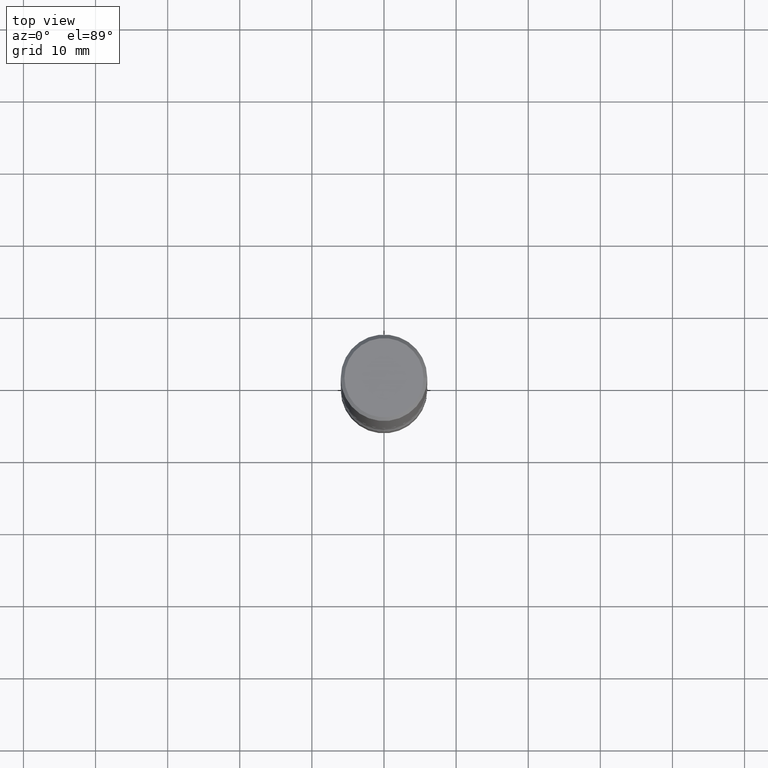
[diagram: clean part render]
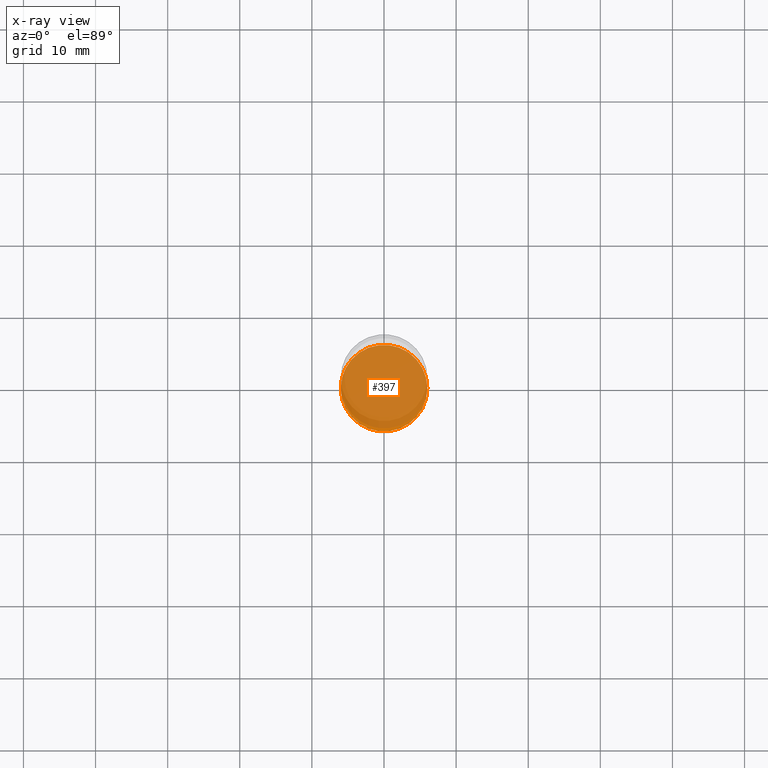
[diagram: x-ray — body ghosted, one internal face saturated and labeled with its STEP entity id]
A machine part, top view, then the same camera in x-ray: the body is ghosted and one INTERNAL B-rep face — a face not visible from any outside direction — is saturated and labeled: STEP entity #397.
In plain terms, the highlighted planar face has unit normal (0, -0, -1).
Its self-contained STEP definition (entity closure, byte-faithful):
#34 = ORIENTED_EDGE ( 'NONE', *, *, #267, .T. ) ;
#62 = VERTEX_POINT ( 'NONE', #86 ) ;
#67 = CARTESIAN_POINT ( 'NONE',  ( 8.087409888934865187E-29, -1.154667793568816723E-14, -3.307100000000000151 ) ) ;
#75 = AXIS2_PLACEMENT_3D ( 'NONE', #557, #475, #292 ) ;
#86 = CARTESIAN_POINT ( 'NONE',  ( 0.2362000000000002153, -1.319605372015766534E-14, -3.307100000000000151 ) ) ;
#94 = CIRCLE ( 'NONE', #75, 0.2362000000000002153 ) ;
#107 = ORIENTED_EDGE ( 'NONE', *, *, #455, .T. ) ;
#158 = FACE_OUTER_BOUND ( 'NONE', #238, .T. ) ;
#183 = DIRECTION ( 'NONE',  ( -2.445468806185136597E-29, 3.491481338843145583E-15, 1.000000000000000000 ) ) ;
#228 = CARTESIAN_POINT ( 'NONE',  ( 8.087409888934865187E-29, -1.154667793568816723E-14, -3.307100000000000151 ) ) ;
#238 = EDGE_LOOP ( 'NONE', ( #34, #107 ) ) ;
#241 = DIRECTION ( 'NONE',  ( -1.000000000000000000, 6.982962677686265922E-15, -4.876176775795935793E-29 ) ) ;
#267 = EDGE_CURVE ( 'NONE', #62, #545, #378, .T. ) ;
#278 = DIRECTION ( 'NONE',  ( 2.438088387897960049E-29, -3.491481338843145188E-15, -1.000000000000000000 ) ) ;
#292 = DIRECTION ( 'NONE',  ( 1.000000000000000000, -6.982962677686266711E-15, 0.000000000000000000 ) ) ;
#358 = DIRECTION ( 'NONE',  ( 1.000000000000000000, -6.982962677686266711E-15, 0.000000000000000000 ) ) ;
#360 = AXIS2_PLACEMENT_3D ( 'NONE', #67, #278, #241 ) ;
#378 = CIRCLE ( 'NONE', #512, 0.2362000000000002153 ) ;
#397 = ADVANCED_FACE ( 'NONE', ( #158 ), #505, .F. ) ;
#455 = EDGE_CURVE ( 'NONE', #545, #62, #94, .T. ) ;
#475 = DIRECTION ( 'NONE',  ( -2.445468806185136597E-29, 3.491481338843145583E-15, 1.000000000000000000 ) ) ;
#505 = PLANE ( 'NONE',  #360 ) ;
#511 = CARTESIAN_POINT ( 'NONE',  ( -0.2362000000000002153, -1.086484476792864136E-14, -3.307100000000000151 ) ) ;
#512 = AXIS2_PLACEMENT_3D ( 'NONE', #228, #183, #358 ) ;
#545 = VERTEX_POINT ( 'NONE', #511 ) ;
#557 = CARTESIAN_POINT ( 'NONE',  ( 8.087409888934865187E-29, -1.154667793568816723E-14, -3.307100000000000151 ) ) ;